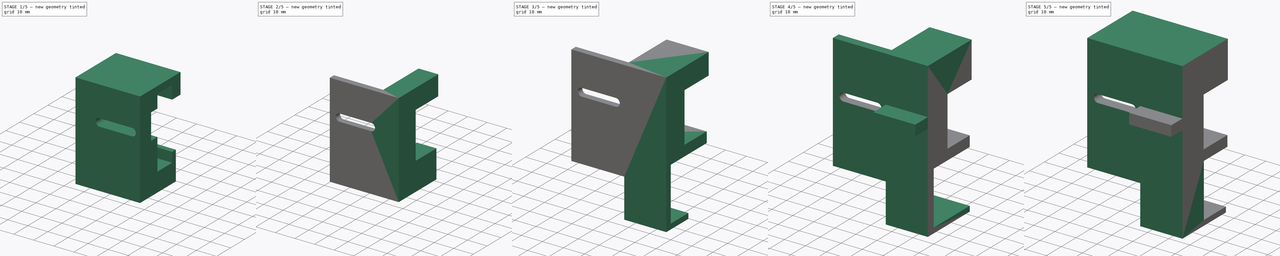
[diagram: build sequence overview — one tinted view per stage of 5, left to right]
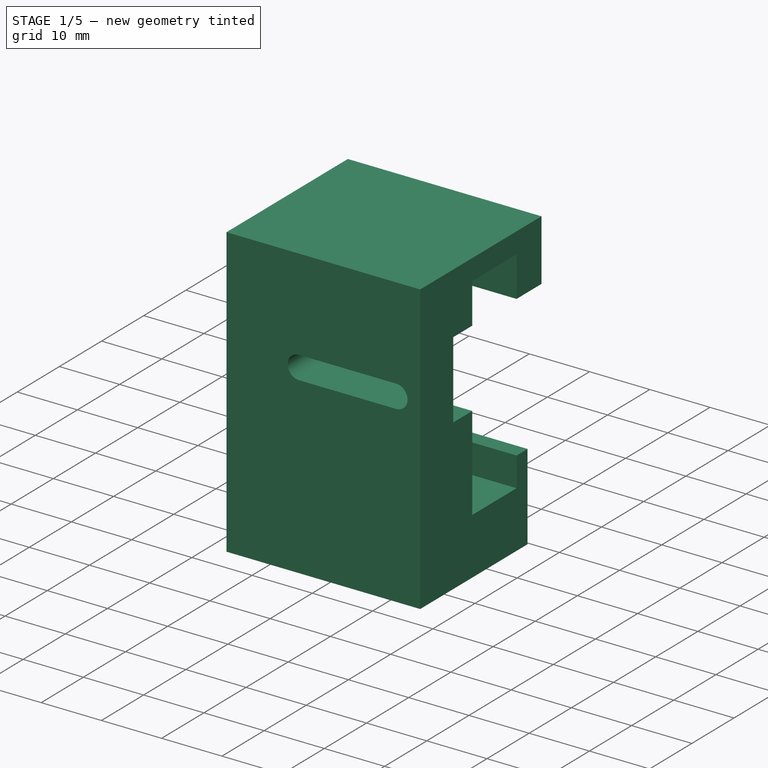
[diagram: stage 1 of 5 — iso view after this stage's code; geometry added in this stage tinted green]
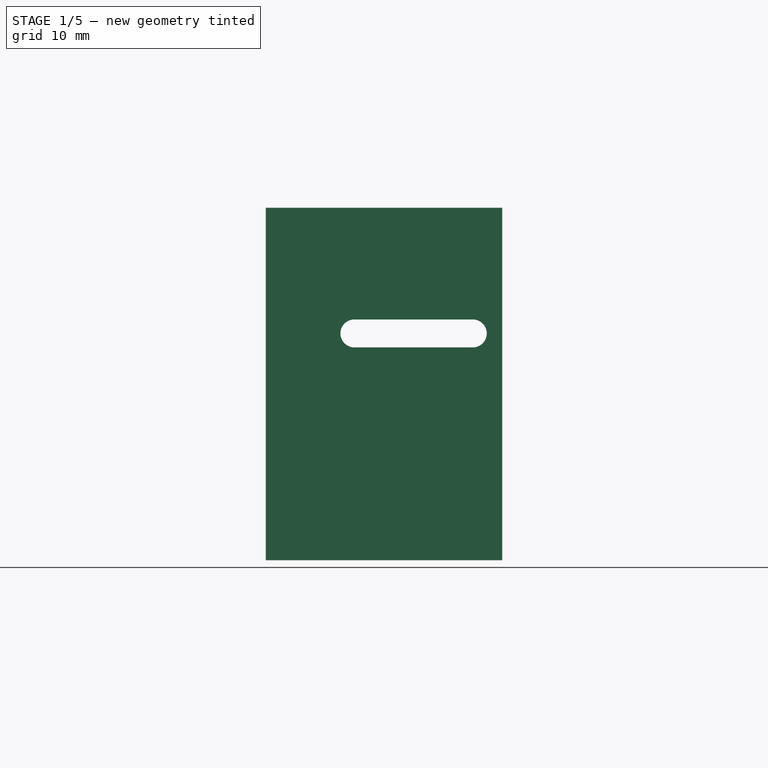
[diagram: stage 1 of 5 — front view after this stage's code; geometry added in this stage tinted green]
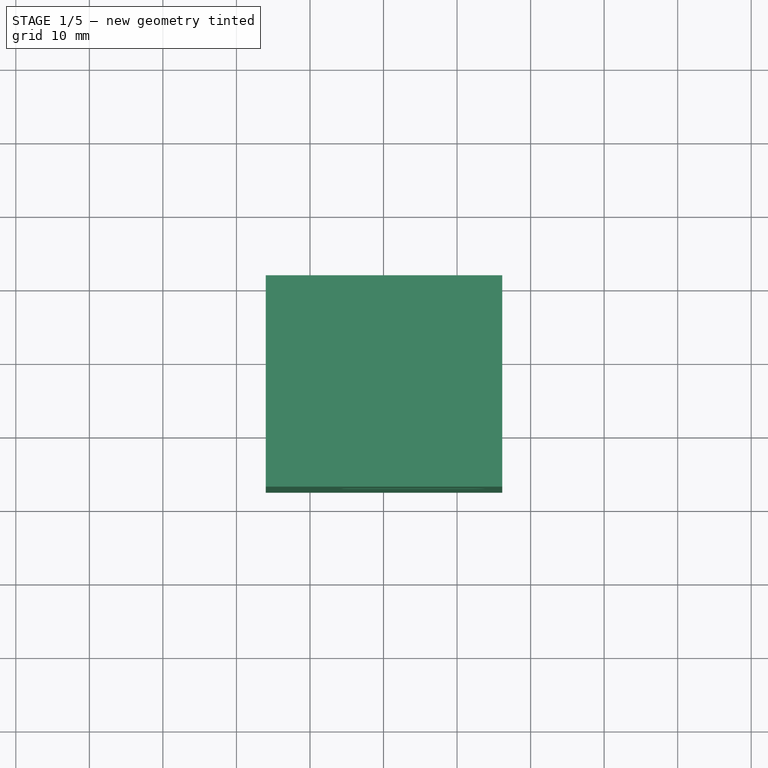
[diagram: stage 1 of 5 — top view after this stage's code; geometry added in this stage tinted green]
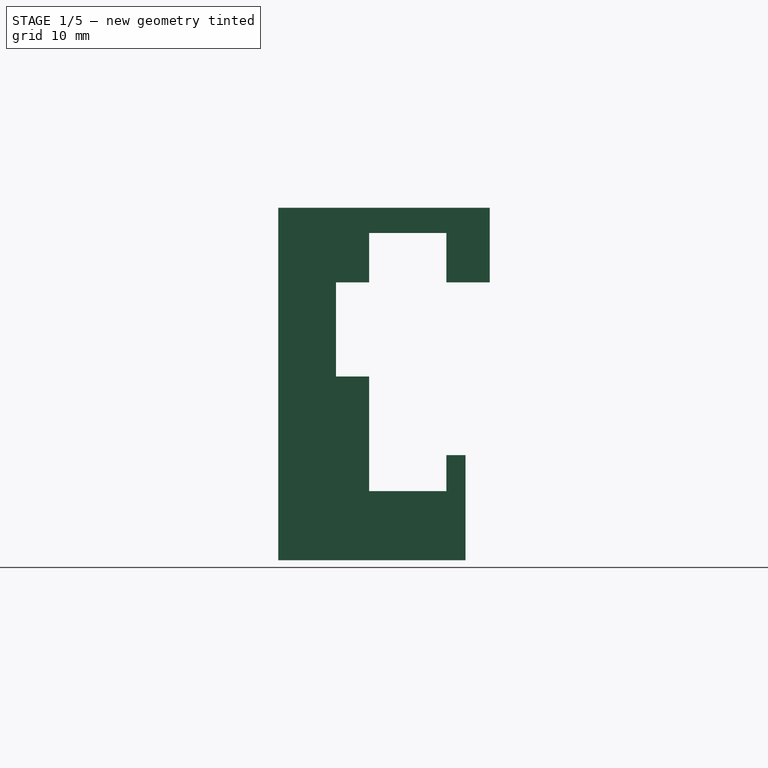
[diagram: stage 1 of 5 — right view after this stage's code; geometry added in this stage tinted green]
FCSTD DOCUMENT  (FreeCAD 1.0R38641 +468 (Git))
Label: k1_cutter_block
License: All rights reserved
LicenseURL: https://en.wikipedia.org/wiki/All_rights_reserved
objects: PartDesign::Pad×16, Sketcher::SketchObject×12, PartDesign::Pocket×6, Part::Feature×1, PartDesign::FeatureBase×1, PartDesign::Body×1, App::Part×1
note: 94 computed .brp shape members not serialized (recipe doc carries the construction recipe); baked Part::Feature solids carry a one-line shape summary decoded from their .brp

FEATURE [Part::Feature] Part__Feature  label="step"
  shape: bbox 73.5 x 47.7 x 99.95 mm, 153 faces (baked)
FEATURE [PartDesign::FeatureBase] BaseFeature
  BaseFeature = -> Part__Feature
  Suppressed = false
FEATURE [Sketcher::SketchObject] Sketch
  ArcFitTolerance = 1e-06
  AttachmentSupport = -> [BaseFeature]
  ExternalGeometry = -> [BaseFeature]
  FullyConstrained = false
  MakeInternals = false
  MapMode = 5
  Placement = pos=(-4.7532e-10,985.528,-2.70035e-10) rot=(1,0,0;1.5708rad)
  sketch-geometry (8):
    g0: LineSegment StartX=126.141 StartY=42.945 StartZ=0 EndX=126.141 EndY=50.8707 EndZ=0
    g1: LineSegment StartX=126.141 StartY=50.8707 StartZ=0 EndX=46.9951 EndY=50.8707 EndZ=0
    g2: LineSegment StartX=46.9951 StartY=50.8707 StartZ=0 EndX=46.9951 EndY=42.945 EndZ=0
    g3: LineSegment StartX=46.9951 StartY=42.945 StartZ=0 EndX=126.141 EndY=42.945 EndZ=0
    g4: LineSegment StartX=126.141 StartY=-5 StartZ=0 EndX=40.5566 EndY=-5 EndZ=0
    g5: LineSegment StartX=40.5566 StartY=-5 StartZ=0 EndX=40.5566 EndY=-61.006 EndZ=0
    g6: LineSegment StartX=40.5566 StartY=-61.006 StartZ=0 EndX=126.141 EndY=-61.006 EndZ=0
    g7: LineSegment StartX=126.141 StartY=-61.006 StartZ=0 EndX=126.141 EndY=-5 EndZ=0
  constraints (18):
    c: Coincident(g0,g1)
    c: Coincident(g1,g2)
    c: Coincident(g2,g3)
    c: Coincident(g3,g0)
    c: Vertical(g0)
    c: Vertical(g2)
    c: Horizontal(g1)
    c: Horizontal(g3)
    c: Coincident(g0,g-3)
    c: Coincident(g4,g5)
    c: Coincident(g5,g6)
    c: Coincident(g6,g7)
    c: Coincident(g7,g4)
    c: Horizontal(g4)
    c: Horizontal(g6)
    c: Vertical(g5)
    c: Vertical(g7)
    c: Coincident(g4,g-3)
FEATURE [PartDesign::Pocket] Pocket
  BaseFeature = -> BaseFeature
  Direction = (-4.823e-13,1,-2.74e-13)
  Length = 5
  Length2 = 5
  Profile = -> Sketch
  ReferenceAxis = -> Sketch [N_Axis]
  Refine = true
  Suppressed = false
  Type = 1
FEATURE [Sketcher::SketchObject] Sketch001
  ArcFitTolerance = 1e-06
  AttachmentSupport = -> [Pocket]
  ExternalGeometry = -> [Pocket]
  FullyConstrained = false
  MakeInternals = false
  MapMode = 5
  Placement = pos=(2.1035e-12,1011.28,3.61633e-11) rot=(0,0.707107,0.707107;3.14159rad)
  sketch-geometry (6):
    g0: LineSegment StartX=-93.9906 StartY=-12.003 StartZ=0 EndX=-93.9906 EndY=54.3727 EndZ=0
    g1: LineSegment StartX=-93.9906 StartY=54.3727 StartZ=0 EndX=-34.3289 EndY=54.3727 EndZ=0
    g2: LineSegment StartX=-34.3289 StartY=54.3727 StartZ=0 EndX=-34.3289 EndY=-63.5861 EndZ=0
    g3: LineSegment StartX=-34.3289 StartY=-63.5861 StartZ=0 EndX=-111.559 EndY=-63.5861 EndZ=0
    g4: LineSegment StartX=-111.559 StartY=-63.5861 StartZ=0 EndX=-111.559 EndY=-12.003 EndZ=0
    g5: LineSegment StartX=-111.559 StartY=-12.003 StartZ=0 EndX=-93.9906 EndY=-12.003 EndZ=0
  constraints (13):
    c: Vertical(g0)
    c: Coincident(g1,g0)
    c: Horizontal(g1)
    c: Coincident(g2,g1)
    c: Vertical(g2)
    c: Coincident(g3,g2)
    c: Horizontal(g3)
    c: Coincident(g4,g3)
    c: Vertical(g4)
    c: Coincident(g5,g4)
    c: Horizontal(g5)
    c: Coincident(g5,g0)
    c: PointOnObject(g-3,g0)
FEATURE [PartDesign::Pocket] Pocket001
  BaseFeature = -> Pocket
  Direction = (-2.1e-15,-1,-3.56e-14)
  Length = 5
  Length2 = 5
  Profile = -> Sketch001
  ReferenceAxis = -> Sketch001 [N_Axis]
  Refine = true
  Suppressed = false
  Type = 1
FEATURE [Sketcher::SketchObject] Sketch002
  ArcFitTolerance = 1e-06
  AttachmentSupport = -> [Pocket001]
  ExternalGeometry = -> [Pocket001]
  FullyConstrained = false
  MakeInternals = false
  MapMode = 5
  Placement = pos=(-4.7532e-10,985.528,-2.70035e-10) rot=(1,0,0;1.5708rad)
  sketch-geometry (4):
    g0: LineSegment StartX=102.937 StartY=42.945 StartZ=0 EndX=102.937 EndY=29.22 EndZ=0
    g1: LineSegment StartX=102.937 StartY=29.22 StartZ=0 EndX=126.141 EndY=29.22 EndZ=0
    g2: LineSegment StartX=126.141 StartY=29.22 StartZ=0 EndX=126.141 EndY=42.945 EndZ=0
    g3: LineSegment StartX=126.141 StartY=42.945 StartZ=0 EndX=102.937 EndY=42.945 EndZ=0
  constraints (10):
    c: Coincident(g0,g1)
    c: Coincident(g1,g2)
    c: Coincident(g2,g3)
    c: Coincident(g3,g0)
    c: Vertical(g0)
    c: Vertical(g2)
    c: Horizontal(g1)
    c: Horizontal(g3)
    c: PointOnObject(g0,g-3)
    c: PointOnObject(g1,g-4)
FEATURE [PartDesign::Pad] Pad
  BaseFeature = -> Pocket001
  Direction = (4.823e-13,-1,2.74e-13)
  Length = 2
  Length2 = 10
  Profile = -> Sketch002
  ReferenceAxis = -> Sketch002 [N_Axis]
  Refine = true
  Reversed = true
  Suppressed = false
  Type = 0
FEATURE [PartDesign::Pad] Pad001
  BaseFeature = -> Pad
  Direction = (5.716e-13,-1,2.179e-13)
  Length = 3
  Length2 = 10
  Profile = -> Pad [Face22]
  Refine = true
  Suppressed = false
  Type = 0
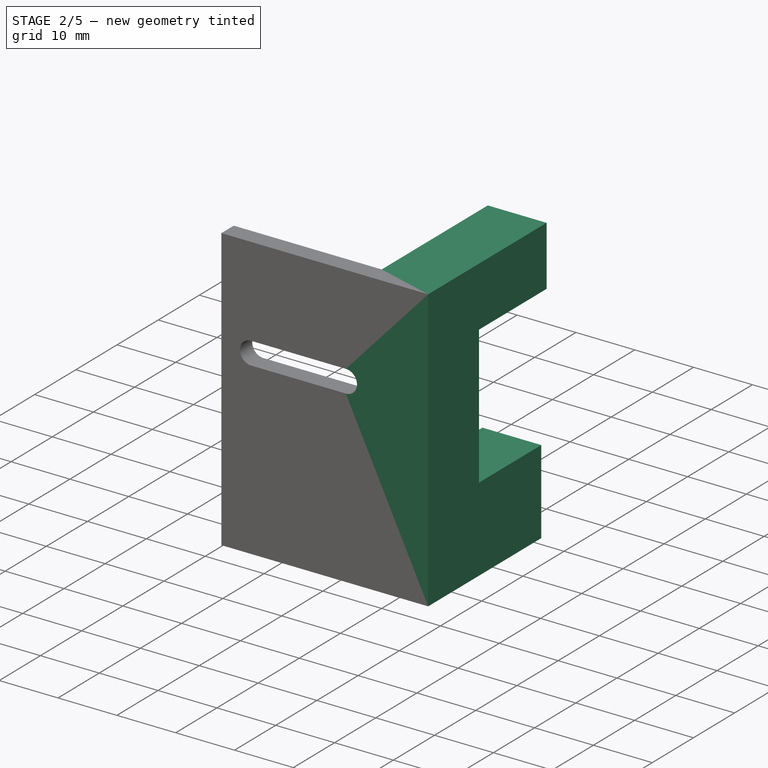
[diagram: stage 2 of 5 — iso view after this stage's code; geometry added in this stage tinted green]
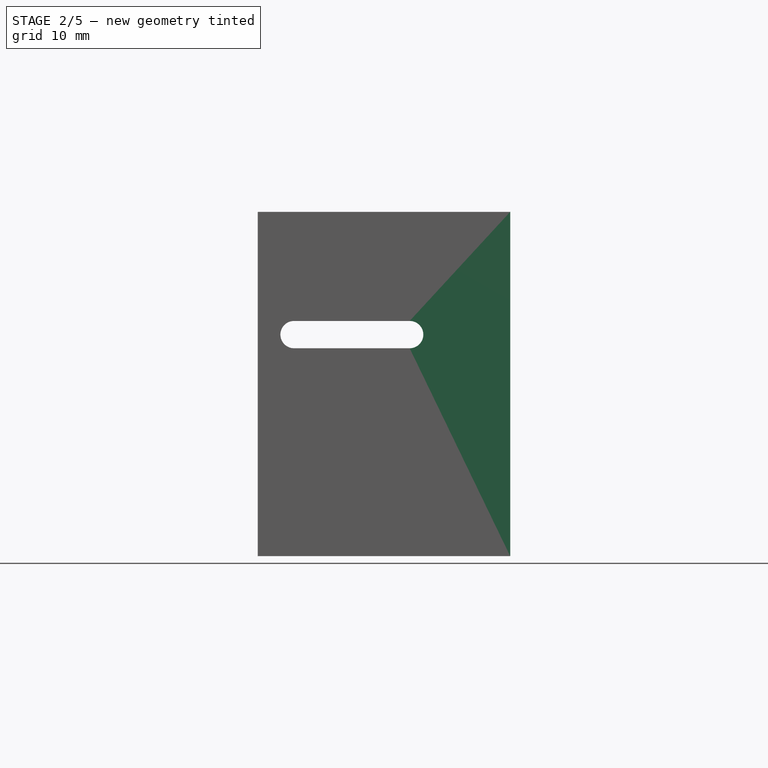
[diagram: stage 2 of 5 — front view after this stage's code; geometry added in this stage tinted green]
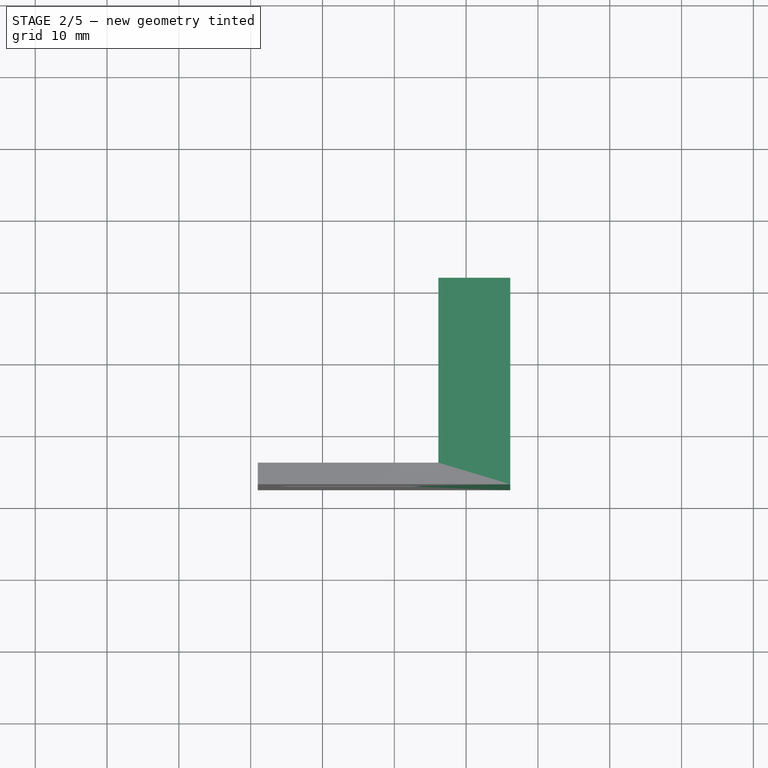
[diagram: stage 2 of 5 — top view after this stage's code; geometry added in this stage tinted green]
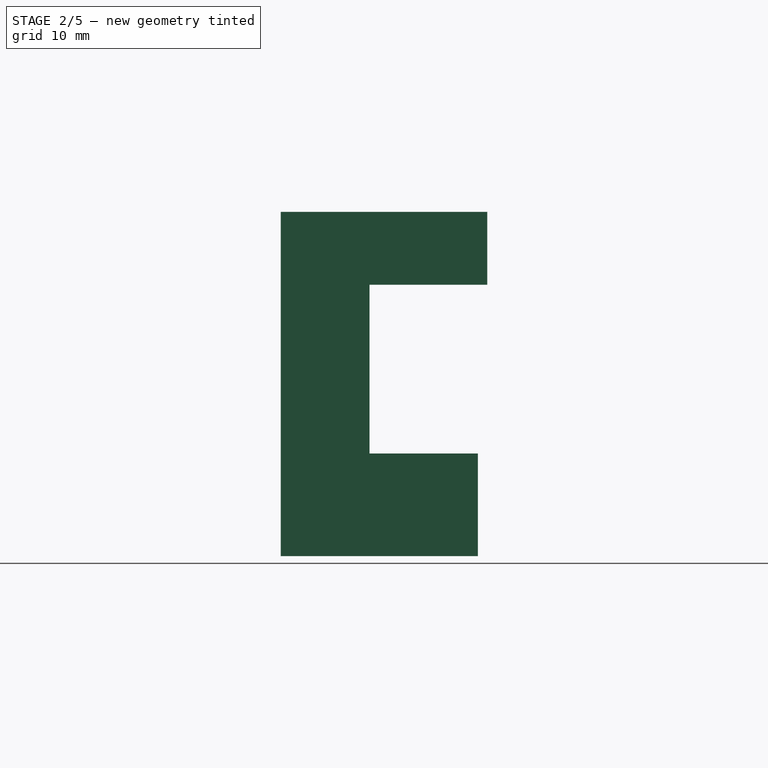
[diagram: stage 2 of 5 — right view after this stage's code; geometry added in this stage tinted green]
FEATURE [Sketcher::SketchObject] Sketch003
  ArcFitTolerance = 1e-06
  AttachmentSupport = -> [Pad001]
  ExternalGeometry = -> [Pad001]
  FullyConstrained = true
  MakeInternals = false
  MapMode = 5
  Placement = pos=(93.9906,3.6816e-12,1.269e-13) rot=(0.57735,-0.57735,-0.57735;2.0944rad)
  sketch-geometry (4):
    g0: LineSegment StartX=-1011.28 StartY=42.945 StartZ=0 EndX=-1011.28 EndY=-5 EndZ=0
    g1: LineSegment StartX=-1011.28 StartY=-5 StartZ=0 EndX=-982.528 EndY=-5 EndZ=0
    g2: LineSegment StartX=-982.528 StartY=-5 StartZ=0 EndX=-982.528 EndY=42.945 EndZ=0
    g3: LineSegment StartX=-982.528 StartY=42.945 StartZ=0 EndX=-1011.28 EndY=42.945 EndZ=0
  constraints (10):
    c: Coincident(g0,g1)
    c: Coincident(g1,g2)
    c: Coincident(g2,g3)
    c: Coincident(g3,g0)
    c: Vertical(g0)
    c: Vertical(g2)
    c: Horizontal(g1)
    c: Horizontal(g3)
    c: Coincident(g0,g-3)
    c: Coincident(g1,g-4)
FEATURE [PartDesign::Pocket] Pocket002
  BaseFeature = -> Pad001
  Direction = (1,3.91e-14,1.3e-15)
  Length = 7
  Length2 = 5
  Profile = -> Sketch003
  ReferenceAxis = -> Sketch003 [N_Axis]
  Refine = true
  Suppressed = false
  Type = 0
FEATURE [PartDesign::Pad] Pad002
  BaseFeature = -> Pocket002
  Direction = (6.6e-15,1,-4.6e-15)
  Length = 2
  Length2 = 10
  Profile = -> Pocket002 [Face12]
  Refine = true
  Suppressed = false
  Type = 0
FEATURE [Sketcher::SketchObject] Sketch004
  ArcFitTolerance = 1e-06
  AttachmentSupport = -> [Pad002]
  ExternalGeometry = -> [Pad002]
  FullyConstrained = true
  MakeInternals = false
  MapMode = 5
  Placement = pos=(126.141,9.2108e-12,1.53917e-11) rot=(0.57735,0.57735,0.57735;2.0944rad)
  sketch-geometry (8):
    g0: LineSegment StartX=982.528 StartY=-5 StartZ=0 EndX=982.528 EndY=42.945 EndZ=0
    g1: LineSegment StartX=982.528 StartY=42.945 StartZ=0 EndX=1011.28 EndY=42.945 EndZ=0
    g2: LineSegment StartX=1011.28 StartY=42.945 StartZ=0 EndX=1011.28 EndY=32.8 EndZ=0
    g3: LineSegment StartX=1011.28 StartY=32.8 StartZ=0 EndX=994.878 EndY=32.8 EndZ=0
    g4: LineSegment StartX=1009.98 StartY=9.3 StartZ=0 EndX=994.878 EndY=9.3 EndZ=0
    g5: LineSegment StartX=1009.98 StartY=9.3 StartZ=0 EndX=1009.98 EndY=-5 EndZ=0
    g6: LineSegment StartX=1009.98 StartY=-5 StartZ=0 EndX=982.528 EndY=-5 EndZ=0
    g7: LineSegment StartX=994.878 StartY=9.3 StartZ=0 EndX=994.878 EndY=32.8 EndZ=0
  constraints (17):
    c: Coincident(g0,g-7)
    c: Coincident(g0,g-8)
    c: Coincident(g1,g0)
    c: Coincident(g1,g-8)
    c: Coincident(g2,g1)
    c: Coincident(g2,g-6)
    c: Coincident(g3,g2)
    c: Coincident(g3,g-3)
    c: Coincident(g4,g-5)
    c: PointOnObject(g4,g-4)
    c: Horizontal(g4)
    c: Coincident(g5,g4)
    c: Coincident(g5,g-7)
    c: Coincident(g6,g5)
    c: Coincident(g6,g0)
    c: Coincident(g7,g4)
    c: Coincident(g7,g3)
FEATURE [PartDesign::Pad] Pad003
  BaseFeature = -> Pad002
  Direction = (1,7.32e-14,1.22e-13)
  Length = 10
  Length2 = 10
  Profile = -> Sketch004
  ReferenceAxis = -> Sketch004 [N_Axis]
  Refine = true
  Suppressed = false
  Type = 0
FEATURE [Sketcher::SketchObject] Sketch005
  ArcFitTolerance = 1e-06
  AttachmentSupport = -> [Pad003]
  ExternalGeometry = -> [Pad003]
  FullyConstrained = true
  MakeInternals = false
  MapMode = 5
  Placement = pos=(100.991,3.8488e-12,1.767e-13) rot=(0.57735,-0.57735,-0.57735;2.0944rad)
  sketch-geometry (4):
    g0: LineSegment StartX=-985.528 StartY=-5 StartZ=0 EndX=-985.528 EndY=42.945 EndZ=0
    g1: LineSegment StartX=-985.528 StartY=42.945 StartZ=0 EndX=-1011.28 EndY=42.945 EndZ=0
    g2: LineSegment StartX=-1011.28 StartY=42.945 StartZ=0 EndX=-1011.28 EndY=-5 EndZ=0
    g3: LineSegment StartX=-1011.28 StartY=-5 StartZ=0 EndX=-985.528 EndY=-5 EndZ=0
  constraints (11):
    c: Coincident(g0,g1)
    c: Coincident(g1,g2)
    c: Coincident(g2,g3)
    c: Coincident(g3,g0)
    c: Vertical(g0)
    c: Vertical(g2)
    c: Horizontal(g1)
    c: Horizontal(g3)
    c: PointOnObject(g0,g-5)
    c: Coincident(g1,g-4)
    c: Distance(g0,g-3) = 3
FEATURE [PartDesign::Pocket] Pocket003
  BaseFeature = -> Pad003
  Direction = (1,3.82e-14,1.8e-15)
  Length = 0
  Length2 = 5
  Profile = -> Sketch005
  ReferenceAxis = -> Sketch005 [N_Axis]
  Refine = true
  Suppressed = false
  Type = 3
  UpToFace = -> Pad003 [Face11]
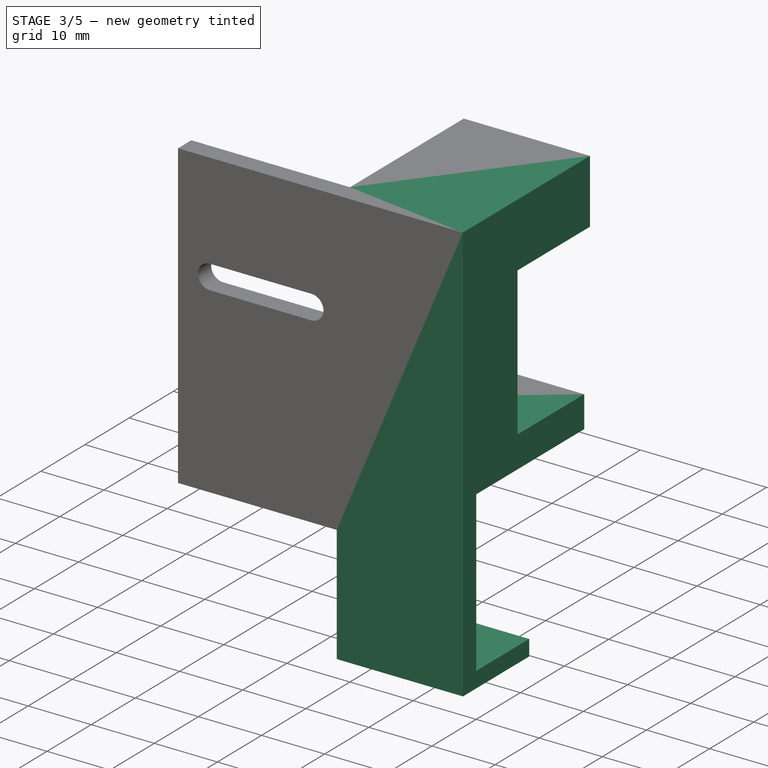
[diagram: stage 3 of 5 — iso view after this stage's code; geometry added in this stage tinted green]
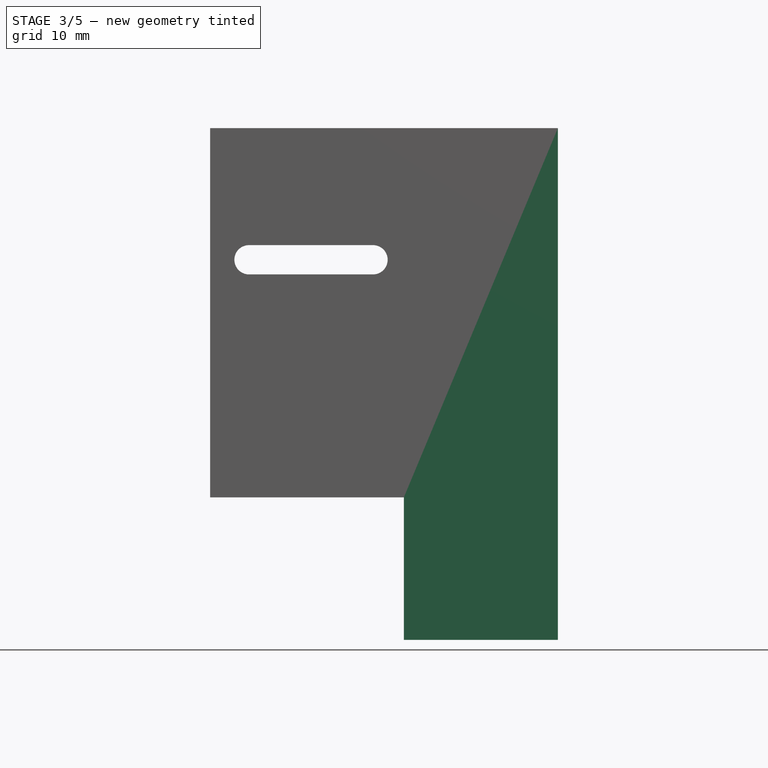
[diagram: stage 3 of 5 — front view after this stage's code; geometry added in this stage tinted green]
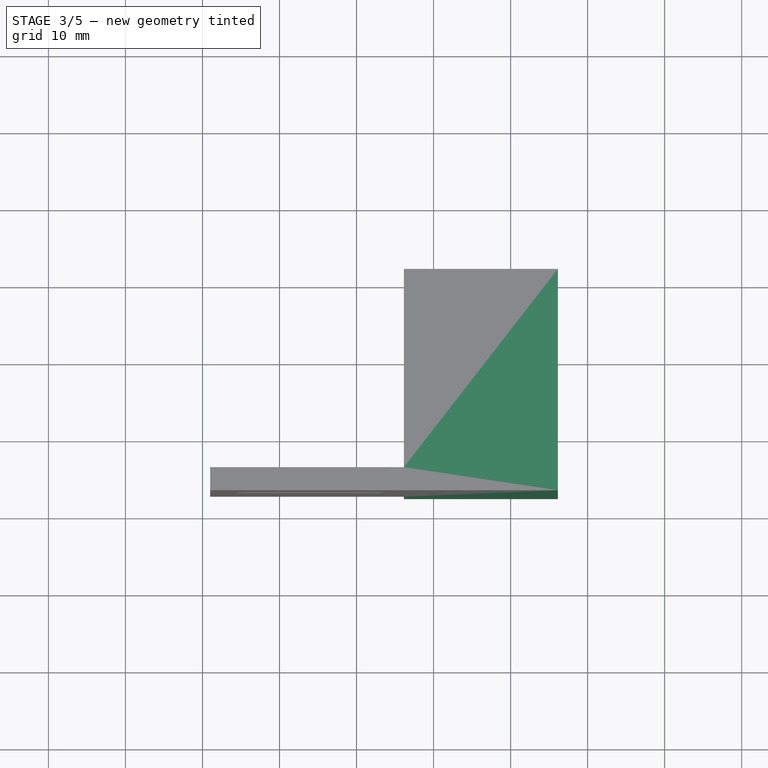
[diagram: stage 3 of 5 — top view after this stage's code; geometry added in this stage tinted green]
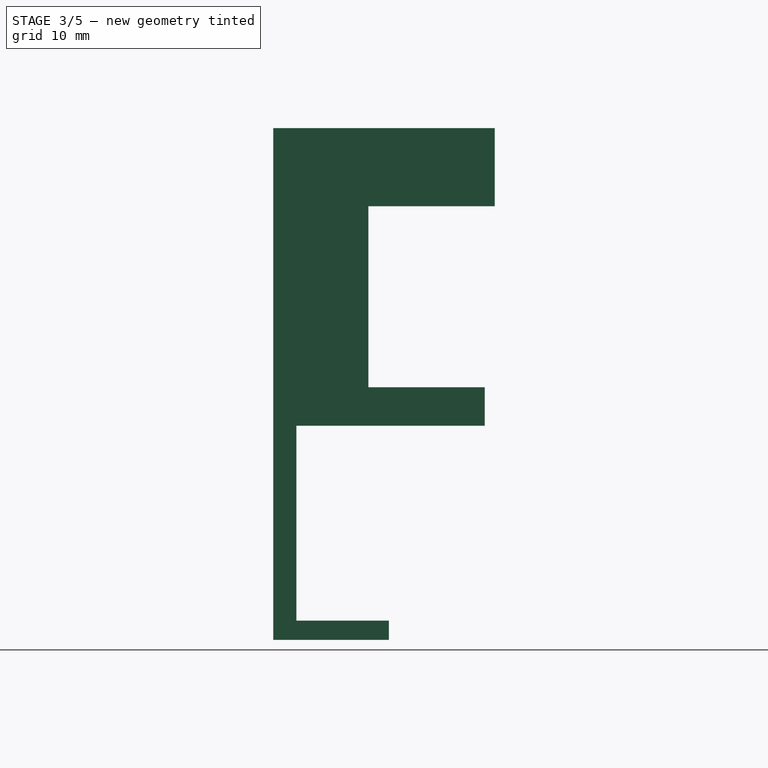
[diagram: stage 3 of 5 — right view after this stage's code; geometry added in this stage tinted green]
FEATURE [Sketcher::SketchObject] Sketch006
  ArcFitTolerance = 1e-06
  AttachmentSupport = -> [Pocket003]
  ExternalGeometry = -> [Pocket003]
  FullyConstrained = true
  MakeInternals = false
  MapMode = 5
  Placement = pos=(-1.10593e-11,1009.98,-2.0402e-12) rot=(0,0.707107,0.707107;3.14159rad)
  sketch-geometry (4):
    g0: LineSegment StartX=-126.141 StartY=-5 StartZ=0 EndX=-126.141 EndY=4.3 EndZ=0
    g1: LineSegment StartX=-126.141 StartY=4.3 StartZ=0 EndX=-136.141 EndY=4.3 EndZ=0
    g2: LineSegment StartX=-136.141 StartY=4.3 StartZ=0 EndX=-136.141 EndY=-5 EndZ=0
    g3: LineSegment StartX=-136.141 StartY=-5 StartZ=0 EndX=-126.141 EndY=-5 EndZ=0
  constraints (11):
    c: Coincident(g0,g1)
    c: Coincident(g1,g2)
    c: Coincident(g2,g3)
    c: Coincident(g3,g0)
    c: Vertical(g0)
    c: Vertical(g2)
    c: Horizontal(g1)
    c: Horizontal(g3)
    c: Coincident(g0,g-4)
    c: PointOnObject(g1,g-5)
    c: Distance(g0,g-3) = 5
FEATURE [PartDesign::Pocket] Pocket004
  BaseFeature = -> Pocket003
  Direction = (1.09e-14,-1,2.1e-15)
  Length = 12.45
  Length2 = 5
  Profile = -> Sketch006
  ReferenceAxis = -> Sketch006 [N_Axis]
  Refine = true
  Suppressed = false
  Type = 0
FEATURE [Sketcher::SketchObject] Sketch007
  ArcFitTolerance = 1e-06
  AttachmentSupport = -> [Pocket004]
  ExternalGeometry = -> [Pocket004]
  FullyConstrained = true
  MakeInternals = false
  MapMode = 5
  Placement = pos=(2.0149e-12,-2.75e-14,-5) rot=(1,0,0;3.14159rad)
  sketch-geometry (4):
    g0: LineSegment StartX=136.141 StartY=-982.528 StartZ=0 EndX=126.141 EndY=-982.528 EndZ=0
    g1: LineSegment StartX=126.141 StartY=-982.528 StartZ=0 EndX=126.141 EndY=-997.528 EndZ=0
    g2: LineSegment StartX=126.141 StartY=-997.528 StartZ=0 EndX=136.141 EndY=-997.528 EndZ=0
    g3: LineSegment StartX=136.141 StartY=-997.528 StartZ=0 EndX=136.141 EndY=-982.528 EndZ=0
  constraints (10):
    c: Coincident(g0,g1)
    c: Coincident(g1,g2)
    c: Coincident(g2,g3)
    c: Coincident(g3,g0)
    c: Horizontal(g0)
    c: Horizontal(g2)
    c: Vertical(g1)
    c: Vertical(g3)
    c: Coincident(g0,g-4)
    c: Coincident(g1,g-3)
FEATURE [PartDesign::Pad] Pad004
  BaseFeature = -> Pocket004
  Direction = (4.03e-13,-5.5e-15,-1)
  Length = 16
  Length2 = 10
  Profile = -> Sketch007
  ReferenceAxis = -> Sketch007 [N_Axis]
  Refine = true
  Suppressed = false
  Type = 0
FEATURE [PartDesign::Pad] Pad005
  BaseFeature = -> Pad004
  Direction = (4.03e-13,-5.5e-15,-1)
  Length = 2.5
  Length2 = 10
  Profile = -> Pad004 [Face16]
  Refine = true
  Suppressed = false
  Type = 0
FEATURE [PartDesign::Pad] Pad006
  BaseFeature = -> Pad005
  Direction = (1,6.54e-14,1.641e-13)
  Length = 10
  Length2 = 10
  Profile = -> Pad005 [Face17]
  Refine = true
  Suppressed = false
  Type = 0
FEATURE [Sketcher::SketchObject] Sketch008
  ArcFitTolerance = 1e-06
  AttachmentSupport = -> [Pad006]
  ExternalGeometry = -> [Pad006]
  FullyConstrained = true
  MakeInternals = false
  MapMode = 5
  Placement = pos=(-3.2689e-11,997.528,-4.1697e-12) rot=(0,0.707107,0.707107;3.14159rad)
  sketch-geometry (4):
    g0: LineSegment StartX=-146.141 StartY=4.3 StartZ=0 EndX=-146.141 EndY=-21 EndZ=0
    g1: LineSegment StartX=-146.141 StartY=-21 StartZ=0 EndX=-126.141 EndY=-21 EndZ=0
    g2: LineSegment StartX=-126.141 StartY=-21 StartZ=0 EndX=-126.141 EndY=4.3 EndZ=0
    g3: LineSegment StartX=-126.141 StartY=4.3 StartZ=0 EndX=-146.141 EndY=4.3 EndZ=0
  constraints (11):
    c: Coincident(g0,g1)
    c: Coincident(g1,g2)
    c: Coincident(g2,g3)
    c: Coincident(g3,g0)
    c: Vertical(g0)
    c: Vertical(g2)
    c: Horizontal(g1)
    c: Horizontal(g3)
    c: Coincident(g0,g-3)
    c: PointOnObject(g1,g-4)
    c: Distance(g1,g-4) = 2.5
FEATURE [PartDesign::Pocket] Pocket005
  BaseFeature = -> Pad006
  Direction = (3.28e-14,-1,4.2e-15)
  Length = 0
  Length2 = 5
  Profile = -> Sketch008
  ReferenceAxis = -> Sketch008 [N_Axis]
  Refine = true
  Suppressed = false
  Type = 3
  UpToFace = -> Pad006 [Face3]
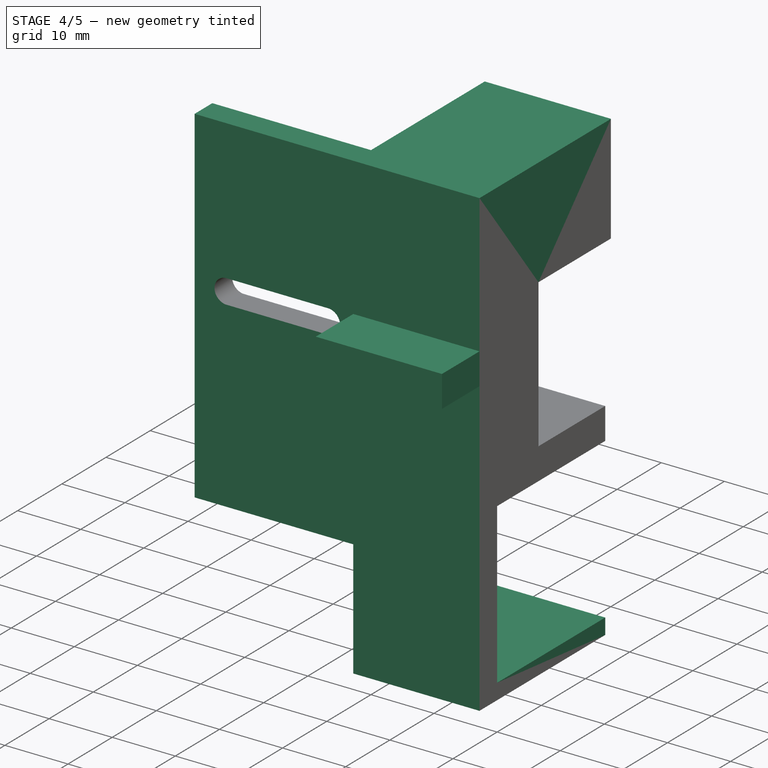
[diagram: stage 4 of 5 — iso view after this stage's code; geometry added in this stage tinted green]
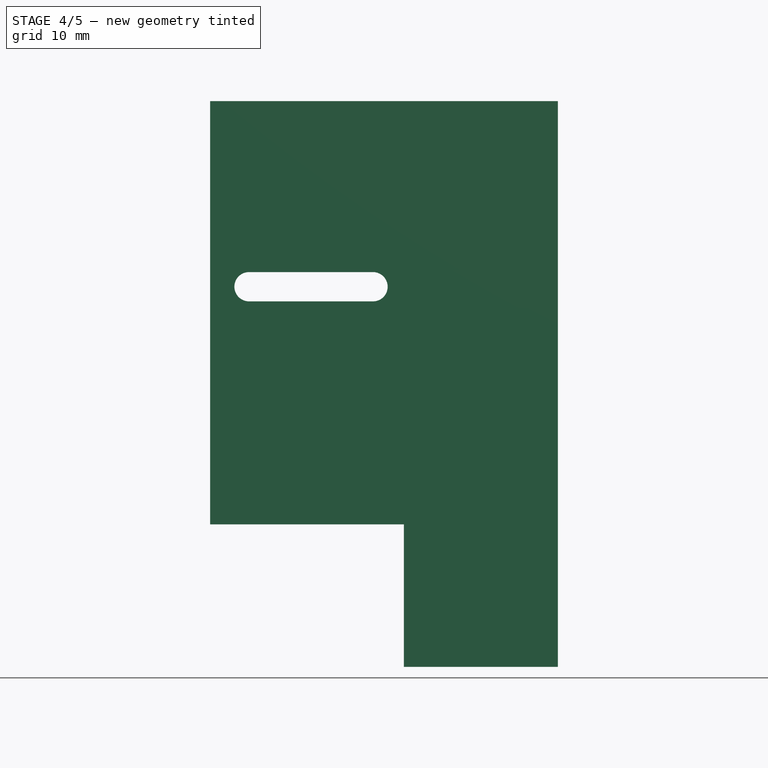
[diagram: stage 4 of 5 — front view after this stage's code; geometry added in this stage tinted green]
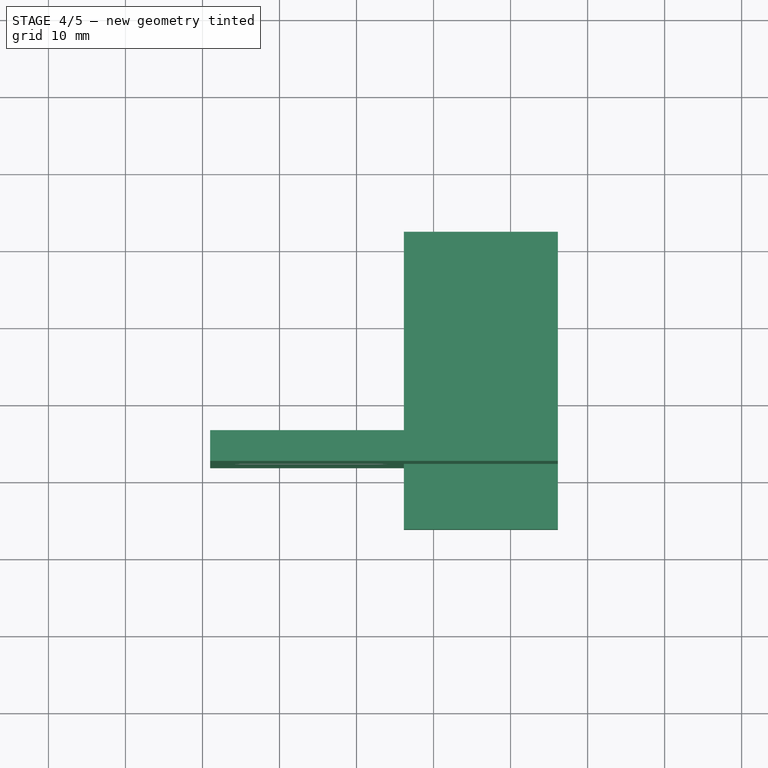
[diagram: stage 4 of 5 — top view after this stage's code; geometry added in this stage tinted green]
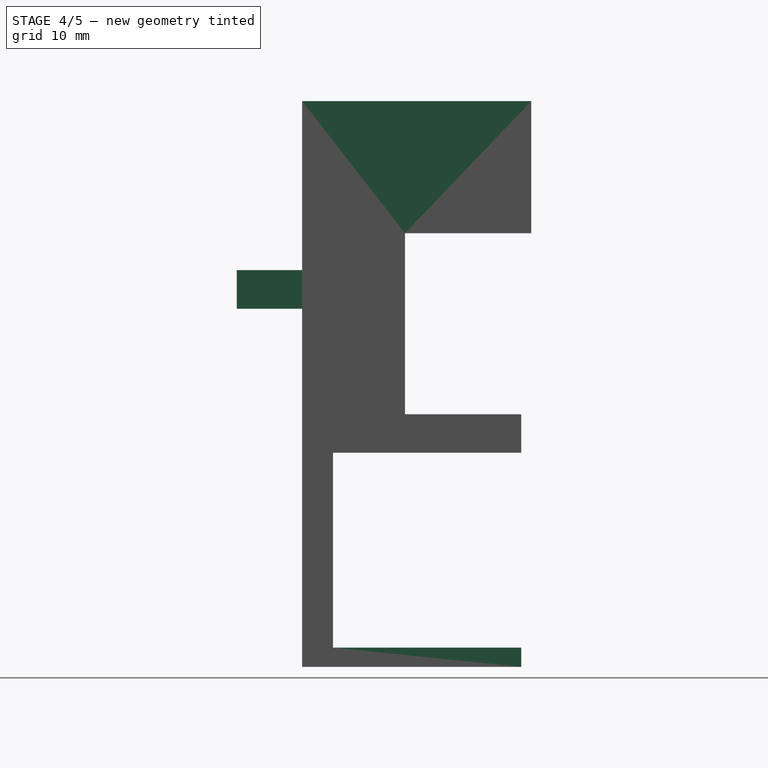
[diagram: stage 4 of 5 — right view after this stage's code; geometry added in this stage tinted green]
FEATURE [Sketcher::SketchObject] Sketch009
  ArcFitTolerance = 1e-06
  AttachmentSupport = -> [Pocket005]
  ExternalGeometry = -> [Pocket005]
  FullyConstrained = true
  MakeInternals = false
  MapMode = 5
  Placement = pos=(-3.89573e-10,982.528,-1.24938e-10) rot=(1,0,0;1.5708rad)
  sketch-geometry (4):
    g0: LineSegment StartX=146.141 StartY=28 StartZ=0 EndX=126.141 EndY=28 EndZ=0
    g1: LineSegment StartX=126.141 StartY=28 StartZ=0 EndX=126.141 EndY=23 EndZ=0
    g2: LineSegment StartX=126.141 StartY=23 StartZ=0 EndX=146.141 EndY=23 EndZ=0
    g3: LineSegment StartX=146.141 StartY=23 StartZ=0 EndX=146.141 EndY=28 EndZ=0
  constraints (12):
    c: Coincident(g0,g1)
    c: Coincident(g1,g2)
    c: Coincident(g2,g3)
    c: Coincident(g3,g0)
    c: Horizontal(g0)
    c: Horizontal(g2)
    c: Vertical(g1)
    c: Vertical(g3)
    c: PointOnObject(g0,g-3)
    c: Distance(g1,g1) = 5
    c: Distance(g2,g-4) = 28
    c: PointOnObject(g1,g-5)
FEATURE [PartDesign::Pad] Pad007
  BaseFeature = -> Pocket005
  Direction = (3.965e-13,-1,1.273e-13)
  Length = 9.5
  Length2 = 10
  Profile = -> Sketch009
  ReferenceAxis = -> Sketch009 [N_Axis]
  Refine = true
  Suppressed = false
  Type = 0
FEATURE [PartDesign::Pad] Pad008
  BaseFeature = -> Pad007
  Direction = (3.965e-13,-1,1.272e-13)
  Length = 1
  Length2 = 10
  Profile = -> Pad007 [Face11]
  Refine = true
  Suppressed = false
  Type = 0
FEATURE [PartDesign::Pad] Pad009
  BaseFeature = -> Pad008
  Direction = (-3.28e-14,1,-4.2e-15)
  Length = 10
  Length2 = 10
  Profile = -> Pad008 [Face10]
  Refine = true
  Suppressed = false
  Type = 3
  UpToFace = -> Pad008 [Face6]
FEATURE [PartDesign::Pad] Pad010
  BaseFeature = -> Pad009
  Direction = (-2.932e-13,5.27e-14,1)
  Length = 7
  Length2 = 10
  Profile = -> Pad009 [Face6]
  Refine = true
  Suppressed = false
  Type = 0
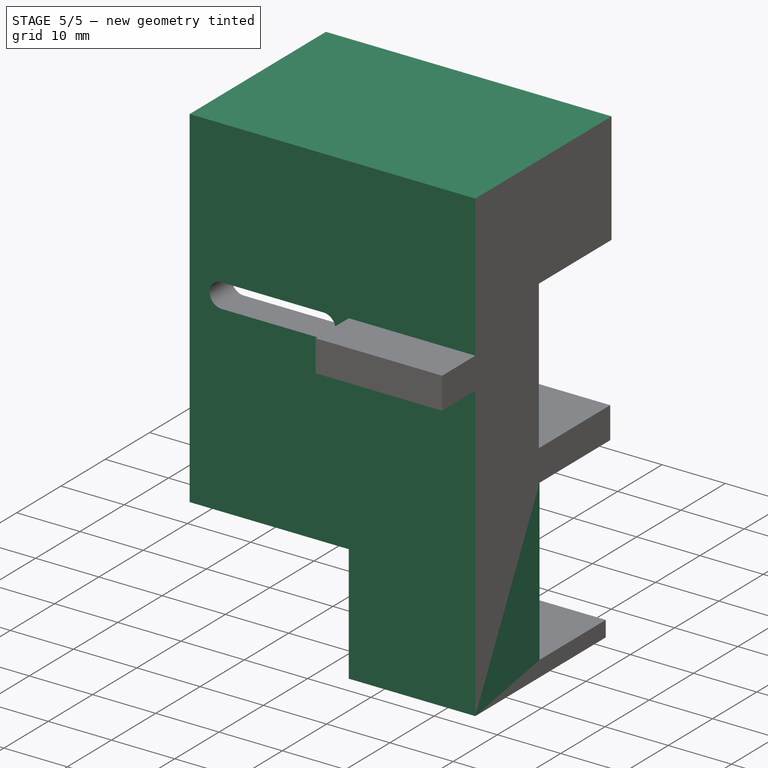
[diagram: stage 5 of 5 — iso view after this stage's code; geometry added in this stage tinted green]
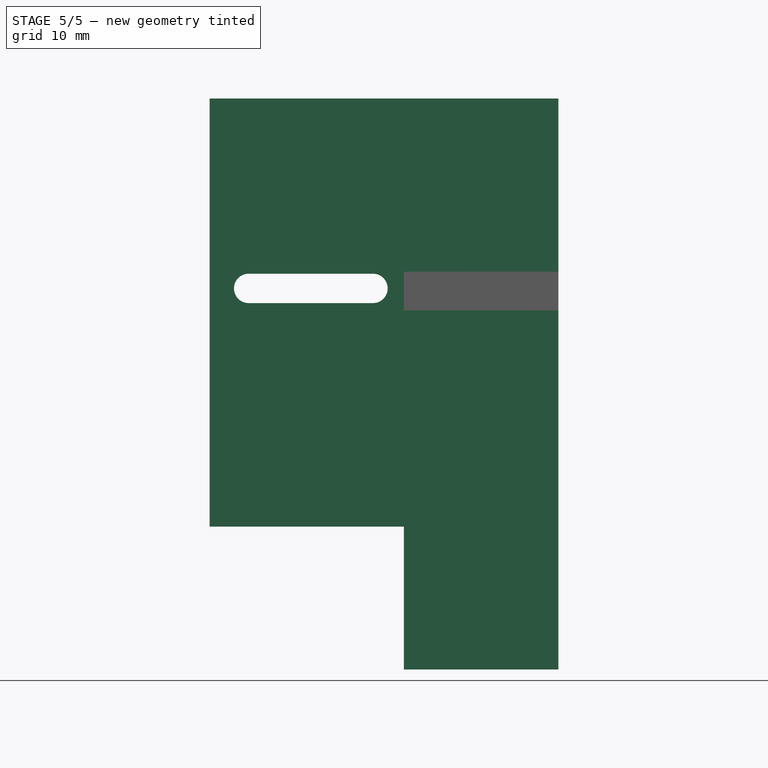
[diagram: stage 5 of 5 — front view after this stage's code; geometry added in this stage tinted green]
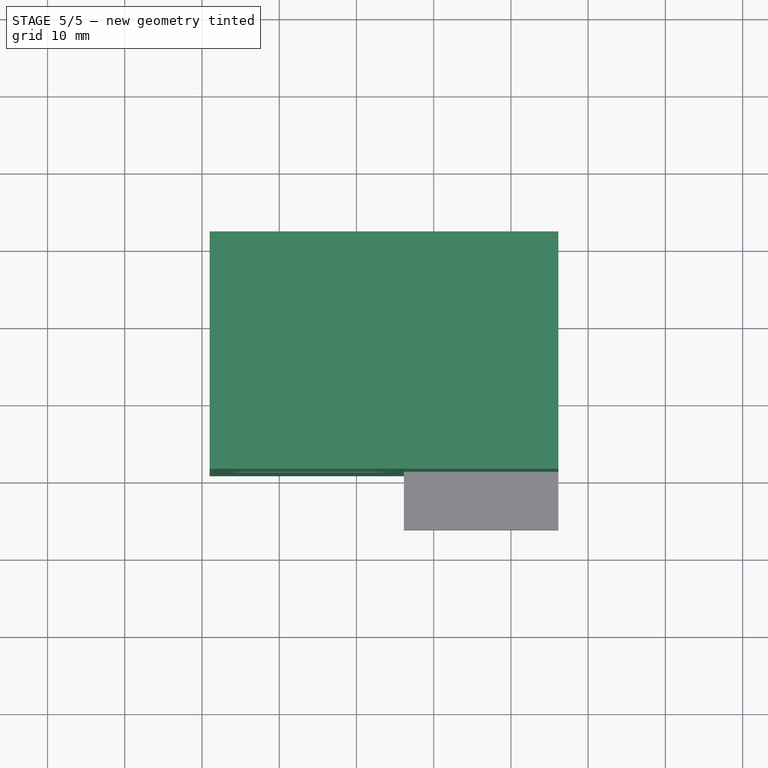
[diagram: stage 5 of 5 — top view after this stage's code; geometry added in this stage tinted green]
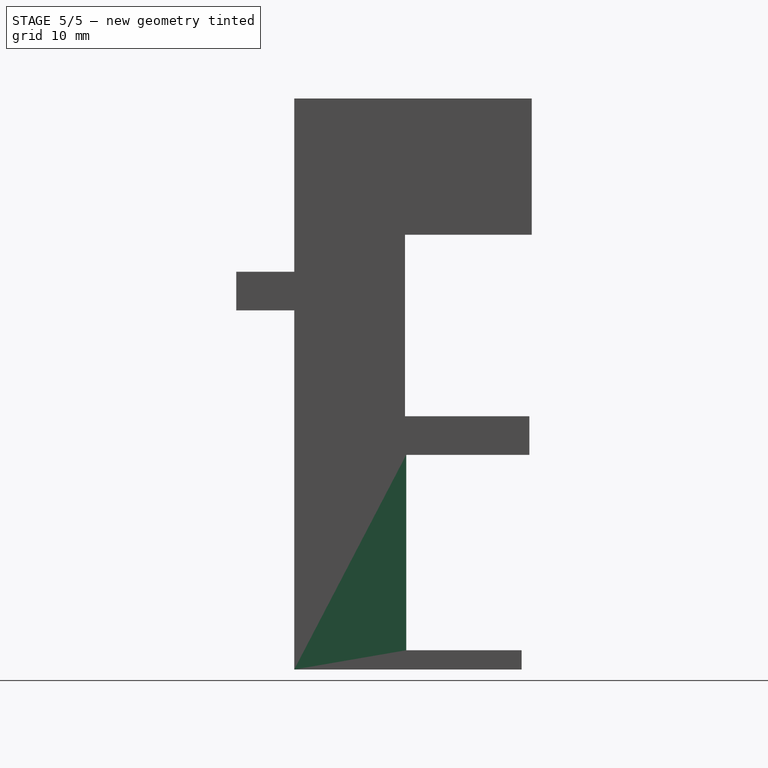
[diagram: stage 5 of 5 — right view after this stage's code; geometry added in this stage tinted green]
FEATURE [Sketcher::SketchObject] Sketch010
  ArcFitTolerance = 1e-06
  AttachmentSupport = -> [Pad010]
  ExternalGeometry = -> [Pad010]
  FullyConstrained = true
  MakeInternals = false
  MapMode = 5
  Placement = pos=(-1.46439e-11,2.6326e-12,49.945) rot=(0,0,1;0rad)
  sketch-geometry (4):
    g0: LineSegment StartX=100.991 StartY=985.528 StartZ=0 EndX=126.141 EndY=985.528 EndZ=0
    g1: LineSegment StartX=126.141 StartY=985.528 StartZ=0 EndX=126.141 EndY=1011.28 EndZ=0
    g2: LineSegment StartX=126.141 StartY=1011.28 StartZ=0 EndX=100.991 EndY=1011.28 EndZ=0
    g3: LineSegment StartX=100.991 StartY=1011.28 StartZ=0 EndX=100.991 EndY=985.528 EndZ=0
  constraints (10):
    c: Coincident(g0,g1)
    c: Coincident(g1,g2)
    c: Coincident(g2,g3)
    c: Coincident(g3,g0)
    c: Horizontal(g0)
    c: Horizontal(g2)
    c: Vertical(g1)
    c: Vertical(g3)
    c: Coincident(g0,g-3)
    c: Coincident(g1,g-4)
FEATURE [PartDesign::Pad] Pad011
  BaseFeature = -> Pad010
  Direction = (-2.932e-13,5.27e-14,1)
  Length = 2
  Length2 = 10
  Profile = -> Sketch010
  ReferenceAxis = -> Sketch010 [N_Axis]
  Refine = true
  Reversed = true
  Suppressed = false
  Type = 0
FEATURE [PartDesign::Pad] Pad012
  BaseFeature = -> Pad011
  Direction = (-2.776e-13,1.256e-13,1)
  Length = 0.5
  Length2 = 10
  Profile = -> Pad011 [Face25]
  Refine = true
  Suppressed = false
  Type = 0
FEATURE [PartDesign::Pad] Pad013
  BaseFeature = -> Pad012
  Direction = (4.102e-13,-1,1.173e-13)
  Length = 1
  Length2 = 10
  Profile = -> Pad012 [Face25]
  Refine = true
  Suppressed = false
  Type = 0
FEATURE [Sketcher::SketchObject] Sketch011
  ArcFitTolerance = 1e-06
  AttachmentSupport = -> [Pad013]
  ExternalGeometry = -> [Pad013]
  FullyConstrained = true
  MakeInternals = false
  MapMode = 5
  Placement = pos=(-3.71347e-11,985.528,-2.523e-12) rot=(0,0.707107,0.707107;3.14159rad)
  sketch-geometry (4):
    g0: LineSegment StartX=-146.141 StartY=4.3 StartZ=0 EndX=-146.141 EndY=-21 EndZ=0
    g1: LineSegment StartX=-146.141 StartY=-21 StartZ=0 EndX=-126.141 EndY=-21 EndZ=0
    g2: LineSegment StartX=-126.141 StartY=-21 StartZ=0 EndX=-126.141 EndY=4.3 EndZ=0
    g3: LineSegment StartX=-126.141 StartY=4.3 StartZ=0 EndX=-146.141 EndY=4.3 EndZ=0
  constraints (10):
    c: Coincident(g0,g1)
    c: Coincident(g1,g2)
    c: Coincident(g2,g3)
    c: Coincident(g3,g0)
    c: Vertical(g0)
    c: Vertical(g2)
    c: Horizontal(g1)
    c: Horizontal(g3)
    c: Coincident(g0,g-4)
    c: Coincident(g1,g-3)
FEATURE [PartDesign::Pad] Pad014
  BaseFeature = -> Pad013
  Direction = (-3.77e-14,1,-2.7e-15)
  Length = 9.5
  Length2 = 10
  Profile = -> Sketch011
  ReferenceAxis = -> Sketch011 [N_Axis]
  Refine = true
  Suppressed = false
  Type = 0
FEATURE [PartDesign::Pad] Pad015
  BaseFeature = -> Pad014
  Direction = (-6.06e-14,1,-8.64e-14)
  Length = 1
  Length2 = 10
  Profile = -> Pad014 [Face5]
  Refine = true
  Suppressed = false
  Type = 0
FEATURE [PartDesign::Body] Body  label="k1_cutter_block"
  AllowCompound = false
  BaseFeature = -> Part__Feature
  Group = -> [BaseFeature,Sketch,Pocket,Sketch001,Pocket001,Sketch002,Pad,Pad001,Sketch003,Pocket002,Pad002,Sketch004,Pad003,Sketch005,Pocket003,Sketch006,Pocket004,Sketch007,Pad004,Pad005,Pad006,Sketch008,Pocket005,Sketch009,Pad007,Pad008,Pad009,Pad010,Sketch010,Pad011,Pad012,Pad013,Sketch011,Pad014,Pad015]
  Origin = -> Origin001
  Tip = -> Pad015
FEATURE [App::Part] Part  label="k1_cutter_block_part"
  Group = -> [Part__Feature,Body]
  Origin = -> Origin
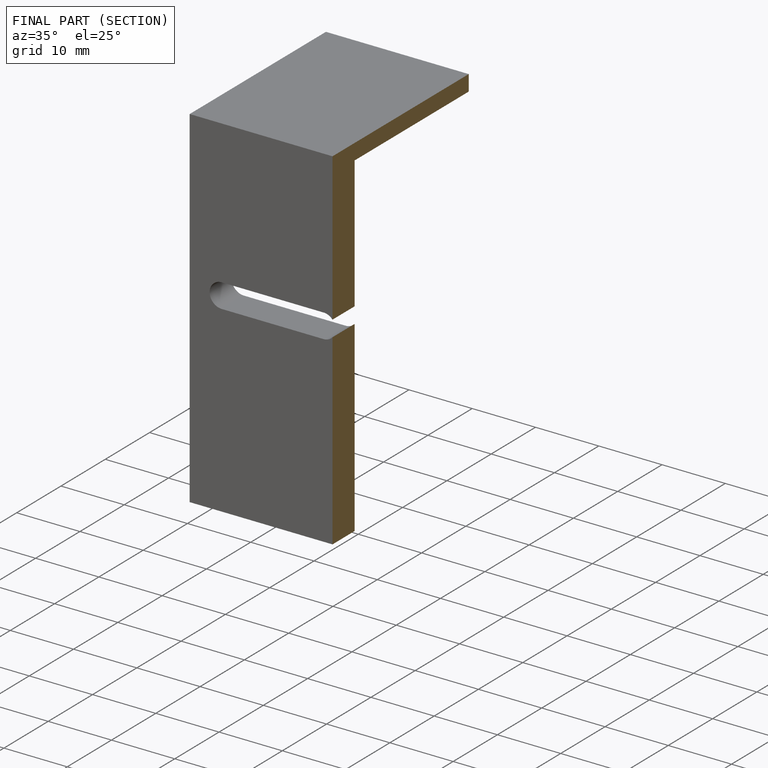
[diagram: finished part — half-section view (interior)]
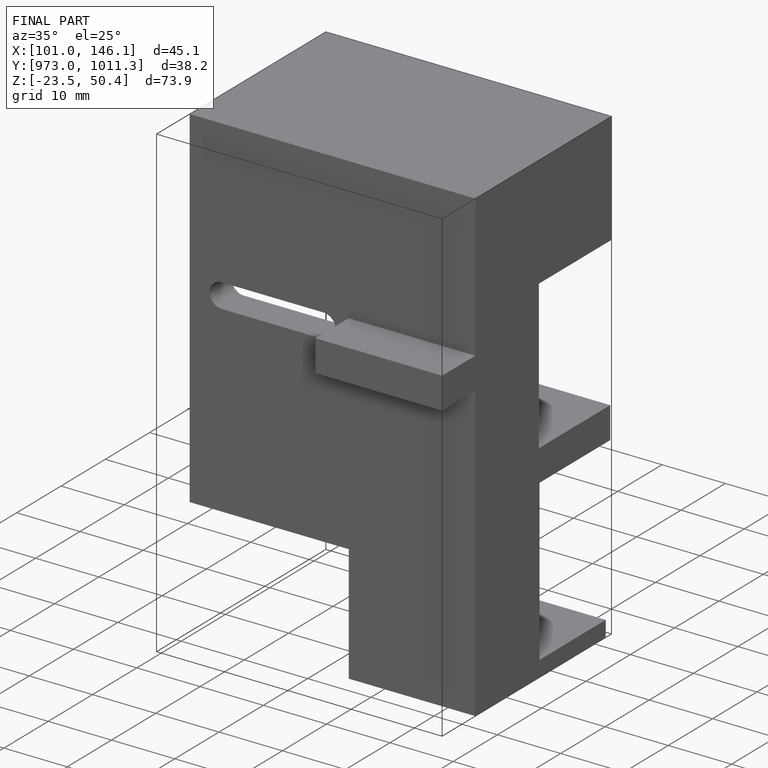
[diagram: finished part — iso view with bounding-box wireframe]
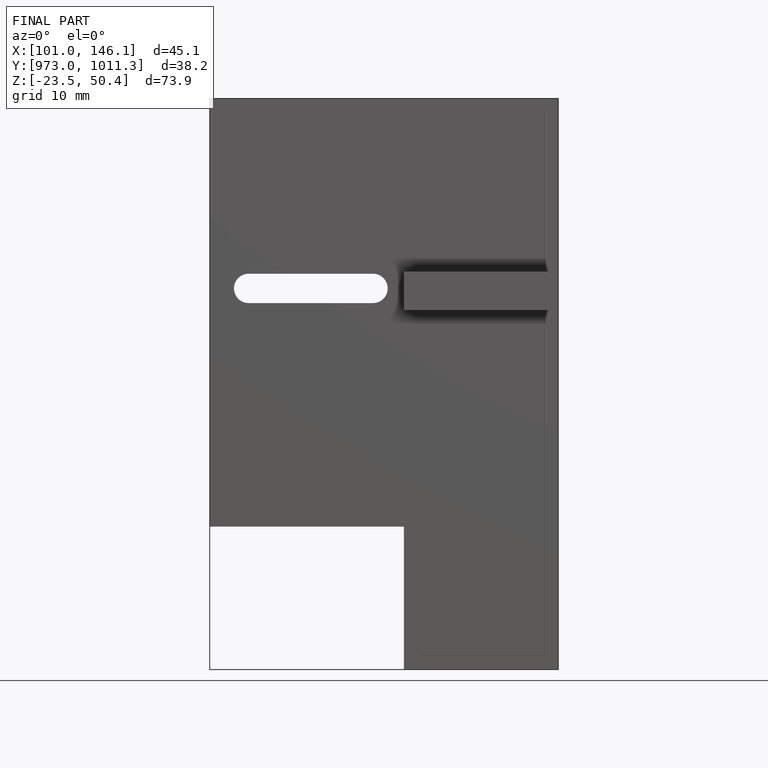
[diagram: finished part — front view with bounding-box wireframe]
